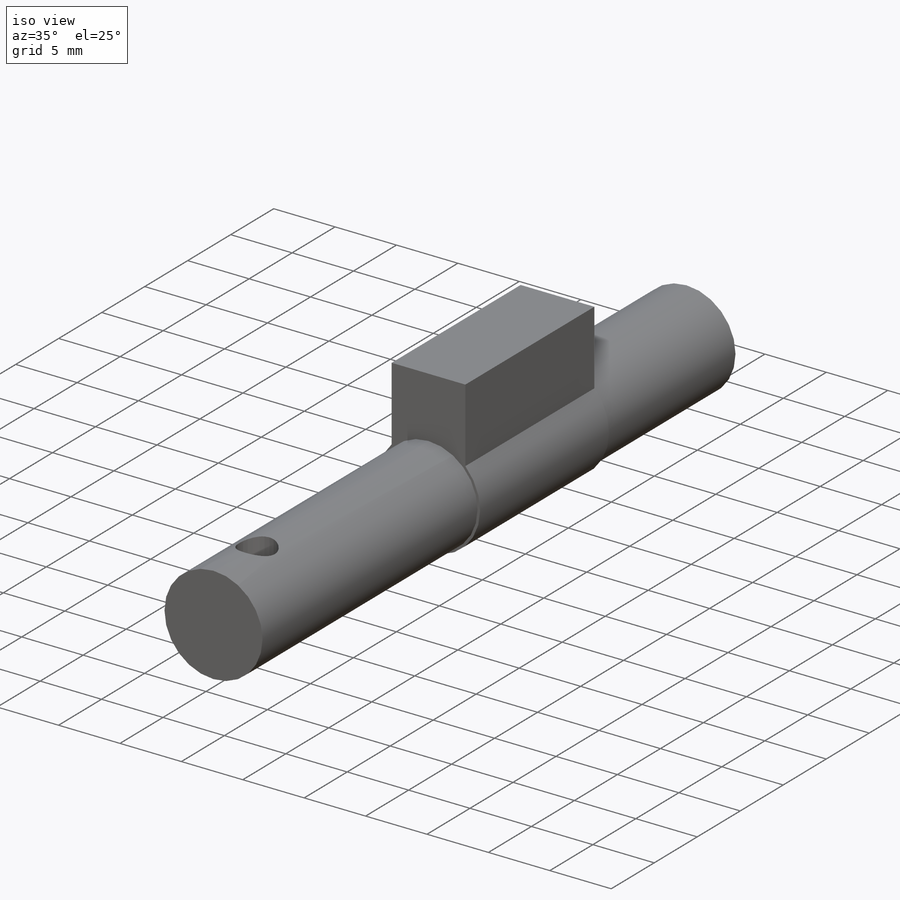
[diagram: iso view]
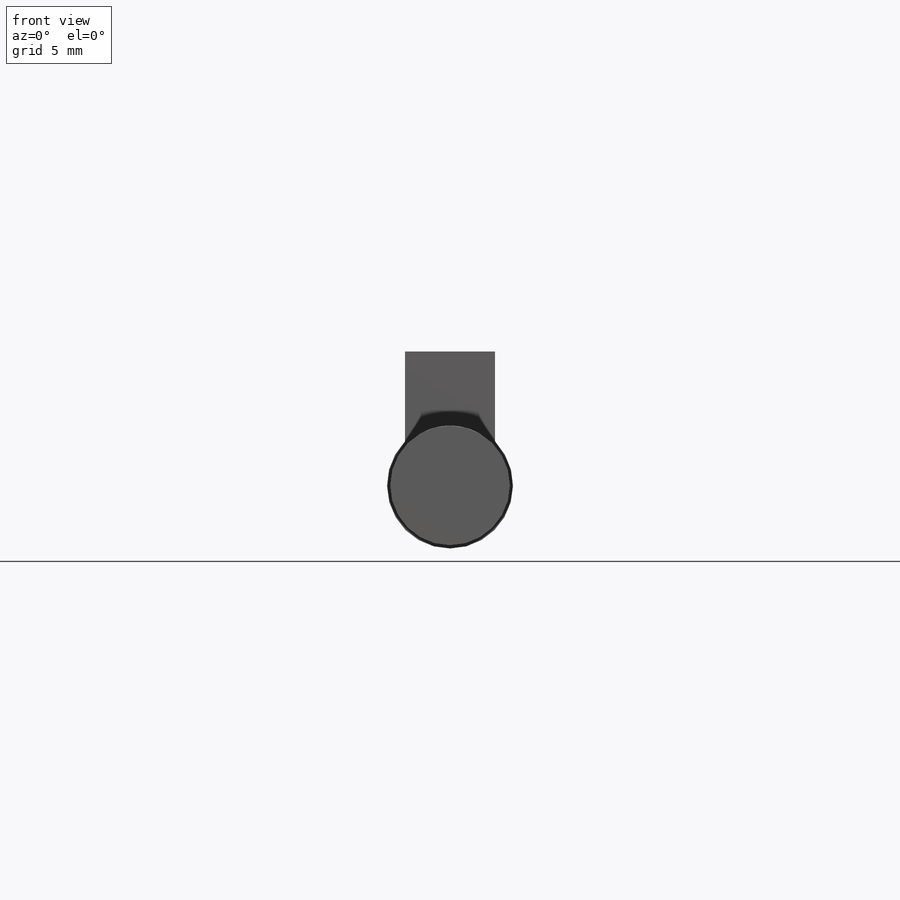
[diagram: front view]
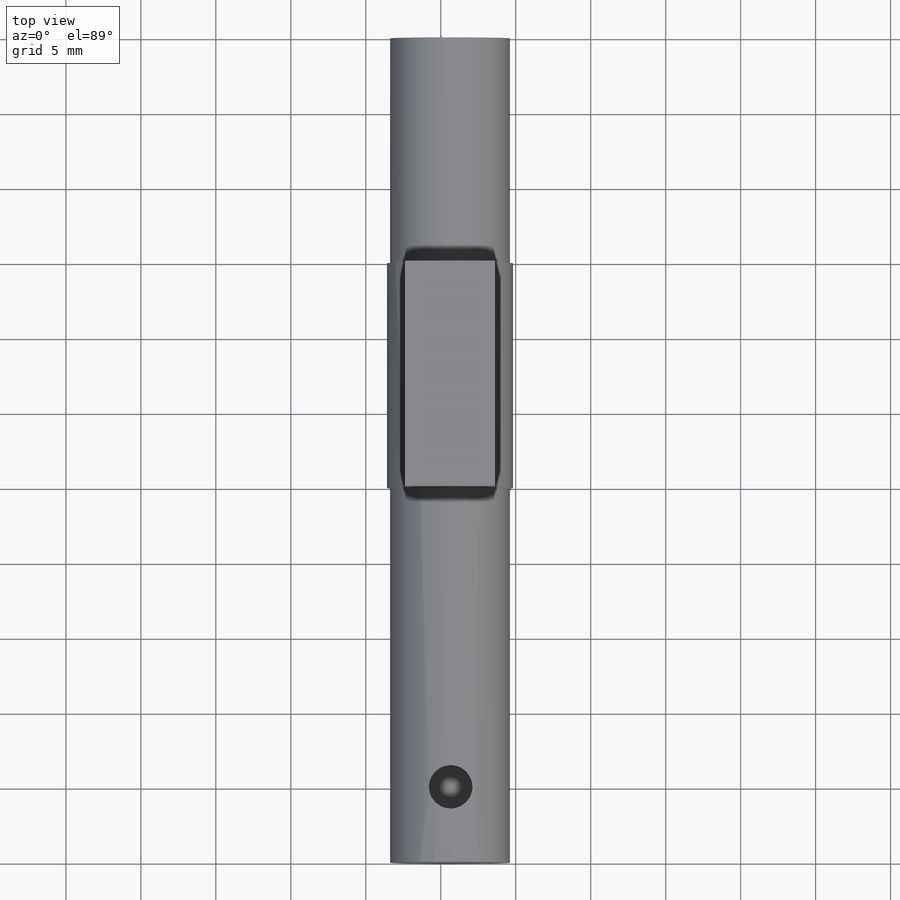
[diagram: top view]
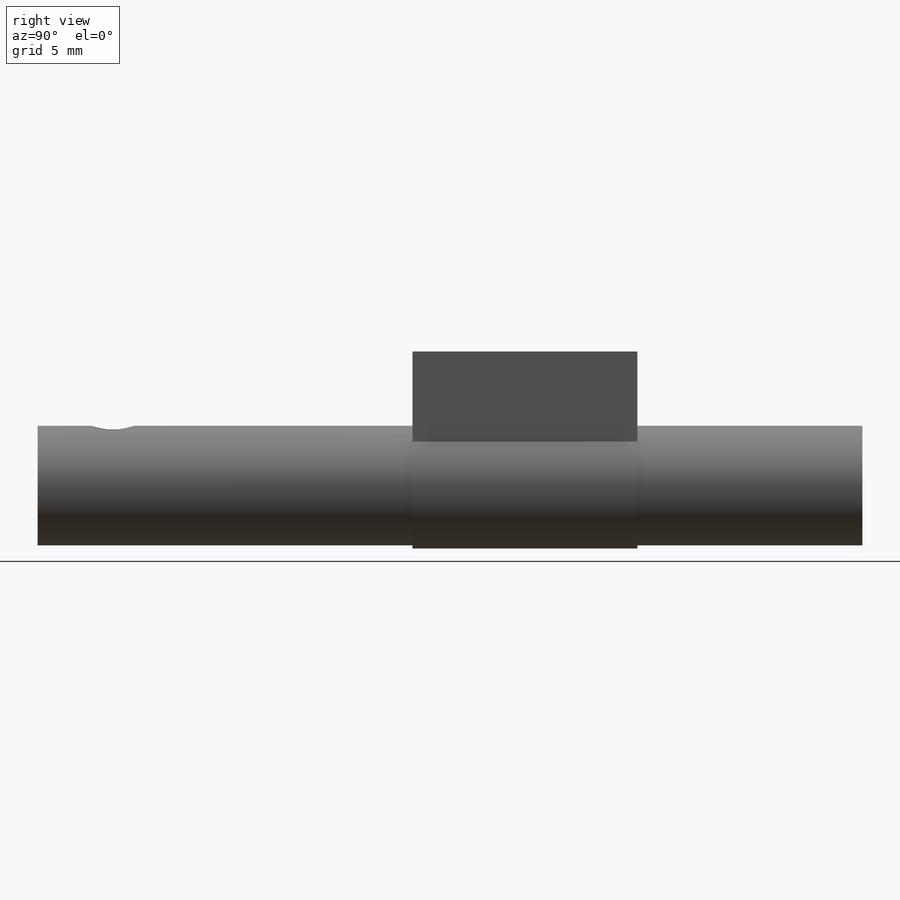
[diagram: right view]
SOLIDWORKS PART (.sldprt)
format: sldprt  version: not decoded by parser v0  size: 189,440 bytes
history: native  units: mm
features: sketch x4, extrude x3, material x1, cut_extrude x1 (+13 scaffold rows collapsed)
feature tree (22):
  scaffold x13  (default folders/planes/origin — collapsed)
  material  "Material <not specified>"
  sketch  "Sketch1"  dims[D1=7.98mm]
  extrude  "Boss-Extrude1"  Depth=15mm
  sketch  "Sketch6"  dims[c1.D1=~3.992986mm c1.D2=8.4mm c2.D1=0.0mm c2.D3=4.2mm c2.D4=4.2mm c2.D5=6.0mm c2.D6=6.0mm]
  extrude  "Boss-Extrude7"  Depth=15mm
  sketch  "Sketch7"  dims[c1.D1=~4.88819mm c1.D2=7.98mm c2.D1=0.0mm]
  extrude  "Boss-Extrude8"  Depth=25mm
  sketch  "Sketch8"  dims[D2=2.9mm D1=3.95mm D3=5.0mm]
  cut_extrude  "Cut-Extrude1"  Depth=8mm
decode coverage: 8 of 8 modeling features carry decoded parameters
note: ~ marks probable driven/reference dimensions
note: suppression state not decoded; provenance and decode notes live in map.json
